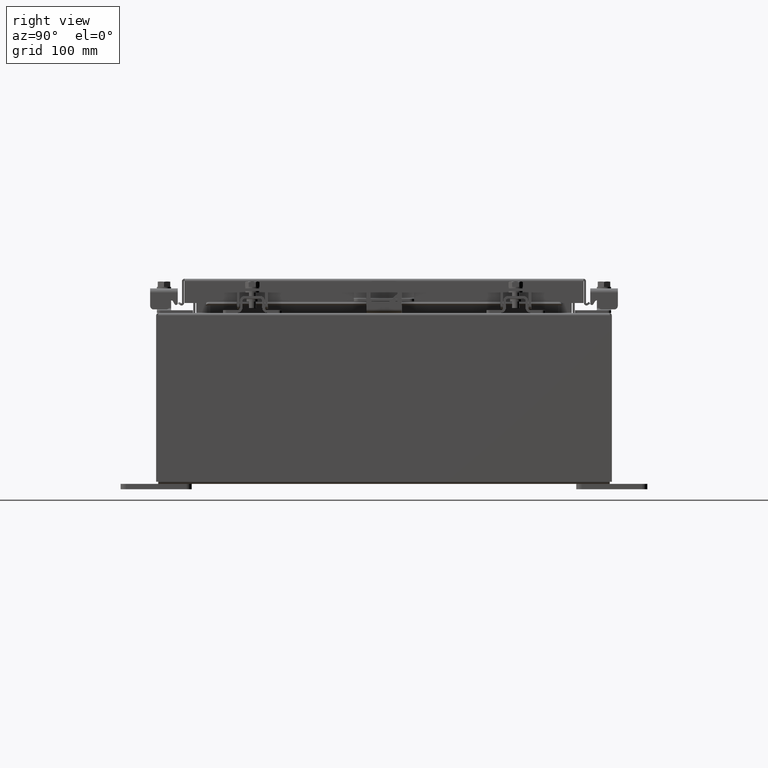
[diagram: clean part render]
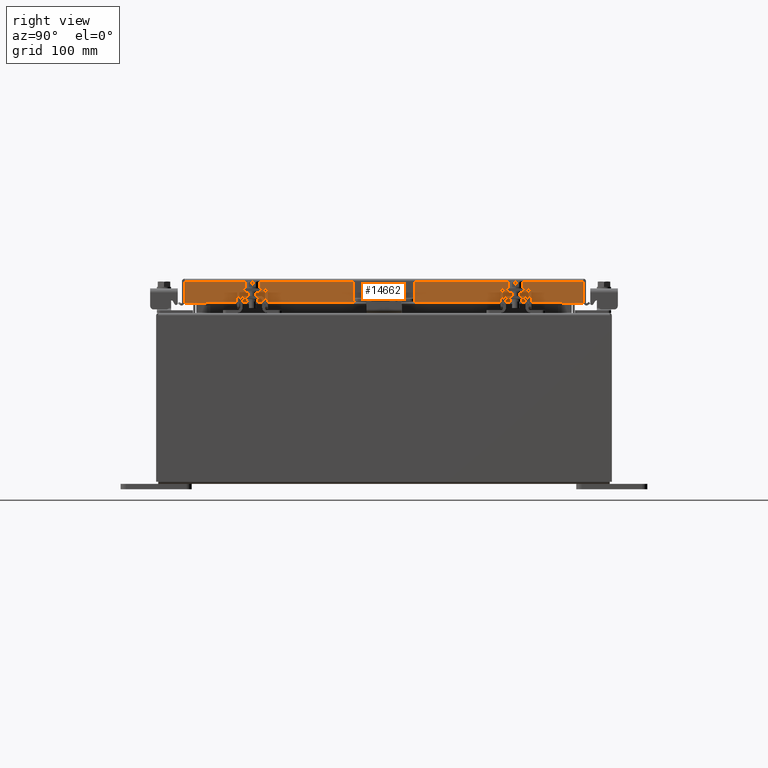
[diagram: same view with one face highlighted and labeled with its STEP entity id]
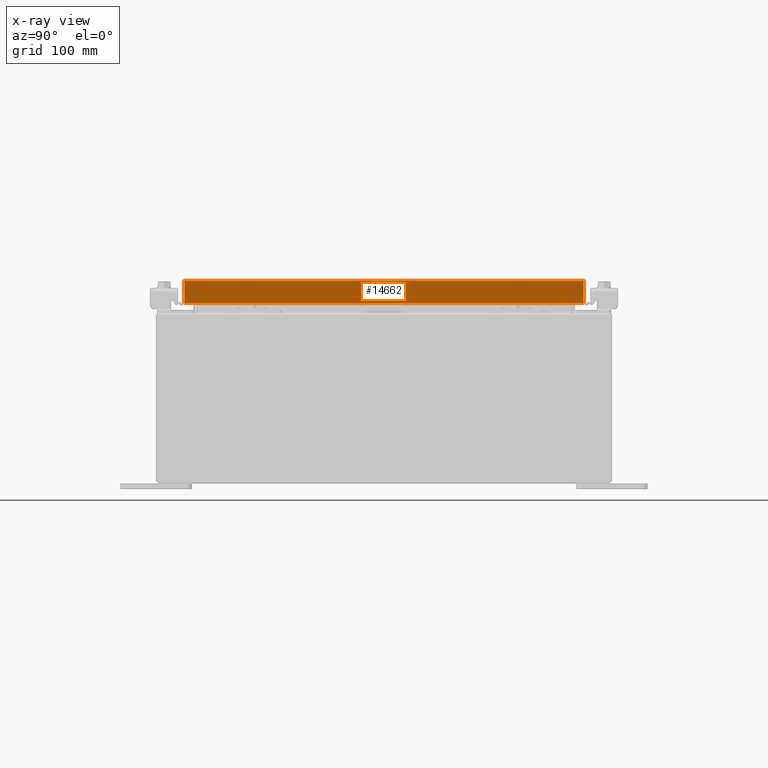
[diagram: x-ray of the same camera — body ghosted, the highlighted face saturated]
A machine part, right view. The second image highlights one B-rep face of the part: STEP entity #14662.
The next image is the same camera in x-ray: the body ghosted, the highlighted face saturated — about 0% of this face is hidden behind the body in this view.
In plain terms, the highlighted planar face has unit normal (1, 0, 0).
Its self-contained STEP definition (entity closure, byte-faithful):
#508 = ORIENTED_EDGE ( 'NONE', *, *, #15868, .F. ) ;
#1218 = ORIENTED_EDGE ( 'NONE', *, *, #1794, .F. ) ;
#1527 = FACE_OUTER_BOUND ( 'NONE', #17057, .T. ) ;
#1794 = EDGE_CURVE ( 'NONE', #17341, #8806, #5510, .T. ) ;
#1842 = VECTOR ( 'NONE', #15394, 39.37007874015748100 ) ;
#1972 = CARTESIAN_POINT ( 'NONE',  ( 7.077999999999996700, 6.255157864376273300, -0.8500000000000006400 ) ) ;
#2435 = VERTEX_POINT ( 'NONE', #24382 ) ;
#2684 = CARTESIAN_POINT ( 'NONE',  ( 7.077999999999999400, 7.005157864376269700, -0.08770000000000007000 ) ) ;
#3039 = LINE ( 'NONE', #25150, #7745 ) ;
#5396 = ORIENTED_EDGE ( 'NONE', *, *, #25100, .T. ) ;
#5510 = LINE ( 'NONE', #1972, #15576 ) ;
#5513 = VECTOR ( 'NONE', #17656, 39.37007874015748100 ) ;
#5741 = LINE ( 'NONE', #22351, #25962 ) ;
#6366 = DIRECTION ( 'NONE',  ( 0.0000000000000000000, -1.000000000000000000, 0.0000000000000000000 ) ) ;
#7734 = CARTESIAN_POINT ( 'NONE',  ( 7.077999999999996700, -6.255157864376264400, -0.8500000000000006400 ) ) ;
#7745 = VECTOR ( 'NONE', #15054, 39.37007874015748100 ) ;
#7926 = AXIS2_PLACEMENT_3D ( 'NONE', #18922, #22986, #10880 ) ;
#8733 = DIRECTION ( 'NONE',  ( 0.0000000000000000000, -1.000000000000000000, 0.0000000000000000000 ) ) ;
#8806 = VERTEX_POINT ( 'NONE', #7734 ) ;
#9168 = ORIENTED_EDGE ( 'NONE', *, *, #23339, .F. ) ;
#9329 = CARTESIAN_POINT ( 'NONE',  ( 7.077999999999999400, 7.005157864376269700, 6.912960888719428400E-014 ) ) ;
#10700 = PLANE ( 'NONE',  #7926 ) ;
#10736 = CARTESIAN_POINT ( 'NONE',  ( 7.077999999999999400, -7.005157864376269700, -0.08770000000000007000 ) ) ;
#10880 = DIRECTION ( 'NONE',  ( 2.818880942772360100E-015, 0.0000000000000000000, -1.000000000000000000 ) ) ;
#14209 = ORIENTED_EDGE ( 'NONE', *, *, #14308, .T. ) ;
#14308 = EDGE_CURVE ( 'NONE', #2435, #15211, #17905, .T. ) ;
#14662 = ADVANCED_FACE ( 'NONE', ( #1527 ), #10700, .T. ) ;
#15054 = DIRECTION ( 'NONE',  ( -2.818880942772360100E-015, -6.982962677686267500E-015, 1.000000000000000000 ) ) ;
#15211 = VERTEX_POINT ( 'NONE', #2684 ) ;
#15394 = DIRECTION ( 'NONE',  ( -2.818880942772360100E-015, -6.982962677686267500E-015, 1.000000000000000000 ) ) ;
#15576 = VECTOR ( 'NONE', #6366, 39.37007874015748100 ) ;
#15868 = EDGE_CURVE ( 'NONE', #24335, #23727, #3039, .T. ) ;
#16216 = LINE ( 'NONE', #23766, #5513 ) ;
#16252 = DIRECTION ( 'NONE',  ( 0.0000000000000000000, -1.000000000000000000, 0.0000000000000000000 ) ) ;
#17057 = EDGE_LOOP ( 'NONE', ( #508, #17917, #1218, #9168, #14209, #5396 ) ) ;
#17341 = VERTEX_POINT ( 'NONE', #17377 ) ;
#17377 = CARTESIAN_POINT ( 'NONE',  ( 7.077999999999996700, 6.255157864376273300, -0.8500000000000006400 ) ) ;
#17656 = DIRECTION ( 'NONE',  ( 0.0000000000000000000, -1.000000000000000000, 0.0000000000000000000 ) ) ;
#17905 = LINE ( 'NONE', #9329, #1842 ) ;
#17917 = ORIENTED_EDGE ( 'NONE', *, *, #23728, .F. ) ;
#18922 = CARTESIAN_POINT ( 'NONE',  ( 7.077999999999999400, 0.0000000000000000000, 2.021285296895434800E-014 ) ) ;
#19374 = VECTOR ( 'NONE', #8733, 39.37007874015748100 ) ;
#20013 = LINE ( 'NONE', #22841, #19374 ) ;
#22351 = CARTESIAN_POINT ( 'NONE',  ( 7.077999999999999400, 0.0000000000000000000, -0.08770000000000007000 ) ) ;
#22841 = CARTESIAN_POINT ( 'NONE',  ( 7.078000000000001200, -7.094000000000000300, -0.8499999999999996400 ) ) ;
#22986 = DIRECTION ( 'NONE',  ( 1.000000000000000000, 0.0000000000000000000, 2.818880942772360100E-015 ) ) ;
#23003 = CARTESIAN_POINT ( 'NONE',  ( 7.078000000000001200, -7.005157864376264400, -0.8499999999999996400 ) ) ;
#23339 = EDGE_CURVE ( 'NONE', #2435, #17341, #16216, .T. ) ;
#23727 = VERTEX_POINT ( 'NONE', #10736 ) ;
#23728 = EDGE_CURVE ( 'NONE', #8806, #24335, #20013, .T. ) ;
#23766 = CARTESIAN_POINT ( 'NONE',  ( 7.078000000000001200, -7.094000000000000300, -0.8499999999999996400 ) ) ;
#24335 = VERTEX_POINT ( 'NONE', #23003 ) ;
#24382 = CARTESIAN_POINT ( 'NONE',  ( 7.078000000000001200, 7.005157864376275100, -0.8499999999999996400 ) ) ;
#25100 = EDGE_CURVE ( 'NONE', #15211, #23727, #5741, .T. ) ;
#25150 = CARTESIAN_POINT ( 'NONE',  ( 7.077999999999999400, -7.005157864376269700, -0.07469999999999978000 ) ) ;
#25962 = VECTOR ( 'NONE', #16252, 39.37007874015748100 ) ;